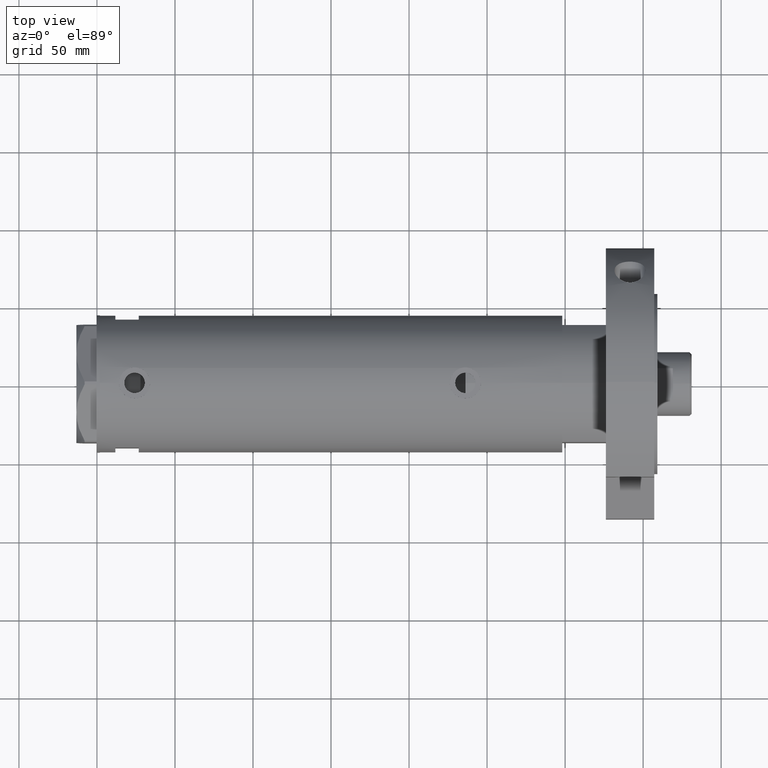
[diagram: clean part render]
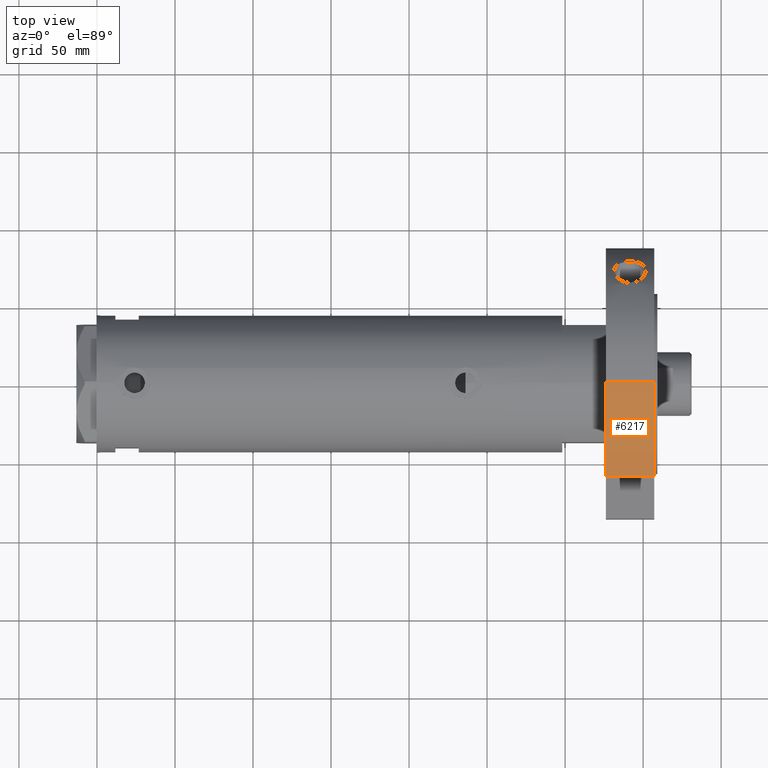
[diagram: same view with one face highlighted and labeled with its STEP entity id]
A machine part, top view. The second image highlights one B-rep face of the part: STEP entity #6217.
In plain terms, the highlighted cylindrical surface (partial cylindrical patch) has radius 87 mm, axis along (-1, -0, 0).
Its self-contained STEP definition (entity closure, byte-faithful):
#209 = CARTESIAN_POINT ( 'NONE',  ( 0.000000000000000000, 0.000000000000000000, 31.00000000000000000 ) ) ;
#292 = CARTESIAN_POINT ( 'NONE',  ( 87.00000000000000000, 1.065442715258197209E-14, 0.000000000000000000 ) ) ;
#715 = DIRECTION ( 'NONE',  ( -0.000000000000000000, -0.000000000000000000, 1.000000000000000000 ) ) ;
#930 = FACE_OUTER_BOUND ( 'NONE', #3230, .T. ) ;
#1632 = ORIENTED_EDGE ( 'NONE', *, *, #5852, .T. ) ;
#1665 = LINE ( 'NONE', #5201, #5830 ) ;
#1856 = LINE ( 'NONE', #6512, #5323 ) ;
#1944 = DIRECTION ( 'NONE',  ( 1.000000000000000000, 0.000000000000000000, 0.000000000000000000 ) ) ;
#2039 = DIRECTION ( 'NONE',  ( -1.000000000000000000, 0.000000000000000000, 0.000000000000000000 ) ) ;
#2081 = AXIS2_PLACEMENT_3D ( 'NONE', #2919, #6955, #5242 ) ;
#2565 = EDGE_CURVE ( 'NONE', #6226, #7123, #1665, .T. ) ;
#2803 = DIRECTION ( 'NONE',  ( -0.000000000000000000, -0.000000000000000000, -1.000000000000000000 ) ) ;
#2919 = CARTESIAN_POINT ( 'NONE',  ( 0.000000000000000000, 0.000000000000000000, 0.000000000000000000 ) ) ;
#3093 = EDGE_CURVE ( 'NONE', #6239, #7175, #1856, .T. ) ;
#3230 = EDGE_LOOP ( 'NONE', ( #5454, #3697, #1632, #3890 ) ) ;
#3257 = CARTESIAN_POINT ( 'NONE',  ( 0.000000000000000000, 0.000000000000000000, 31.00000000000000000 ) ) ;
#3697 = ORIENTED_EDGE ( 'NONE', *, *, #2565, .T. ) ;
#3890 = ORIENTED_EDGE ( 'NONE', *, *, #3093, .T. ) ;
#4050 = AXIS2_PLACEMENT_3D ( 'NONE', #209, #6178, #1944 ) ;
#5201 = CARTESIAN_POINT ( 'NONE',  ( 87.00000000000000000, 1.065442715258197209E-14, 31.00000000000000000 ) ) ;
#5242 = DIRECTION ( 'NONE',  ( 1.000000000000000000, 0.000000000000000000, 0.000000000000000000 ) ) ;
#5323 = VECTOR ( 'NONE', #715, 1000.000000000000000 ) ;
#5363 = CIRCLE ( 'NONE', #4050, 87.00000000000000000 ) ;
#5454 = ORIENTED_EDGE ( 'NONE', *, *, #6548, .F. ) ;
#5830 = VECTOR ( 'NONE', #7029, 1000.000000000000000 ) ;
#5852 = EDGE_CURVE ( 'NONE', #7123, #6239, #5984, .T. ) ;
#5984 = CIRCLE ( 'NONE', #2081, 87.00000000000000000 ) ;
#6126 = CARTESIAN_POINT ( 'NONE',  ( 87.00000000000000000, 1.065442715258197209E-14, 31.00000000000000000 ) ) ;
#6178 = DIRECTION ( 'NONE',  ( 0.000000000000000000, 0.000000000000000000, 1.000000000000000000 ) ) ;
#6217 = ADVANCED_FACE ( 'NONE', ( #930 ), #6280, .T. ) ;
#6226 = VERTEX_POINT ( 'NONE', #6126 ) ;
#6239 = VERTEX_POINT ( 'NONE', #6707 ) ;
#6280 = CYLINDRICAL_SURFACE ( 'NONE', #6600, 87.00000000000000000 ) ;
#6512 = CARTESIAN_POINT ( 'NONE',  ( 62.54236590573034249, 60.47687547247904405, 0.000000000000000000 ) ) ;
#6548 = EDGE_CURVE ( 'NONE', #6226, #7175, #5363, .T. ) ;
#6600 = AXIS2_PLACEMENT_3D ( 'NONE', #3257, #2803, #2039 ) ;
#6707 = CARTESIAN_POINT ( 'NONE',  ( 62.54236590573034249, 60.47687547247904405, 0.000000000000000000 ) ) ;
#6955 = DIRECTION ( 'NONE',  ( 0.000000000000000000, 0.000000000000000000, 1.000000000000000000 ) ) ;
#7029 = DIRECTION ( 'NONE',  ( -0.000000000000000000, -0.000000000000000000, -1.000000000000000000 ) ) ;
#7123 = VERTEX_POINT ( 'NONE', #292 ) ;
#7175 = VERTEX_POINT ( 'NONE', #7402 ) ;
#7402 = CARTESIAN_POINT ( 'NONE',  ( 62.54236590573034249, 60.47687547247904405, 31.00000000000000000 ) ) ;